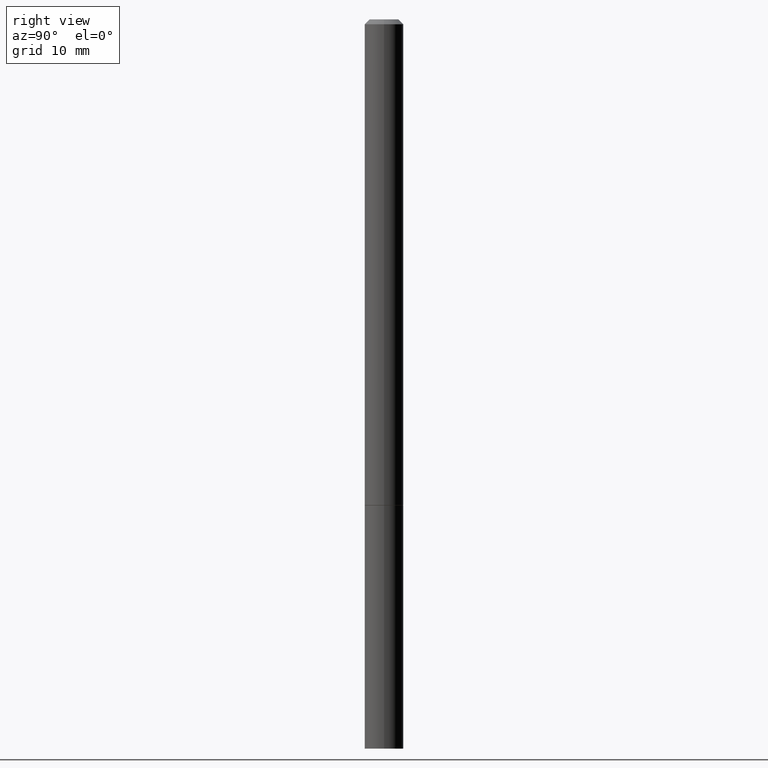
[diagram: clean part render]
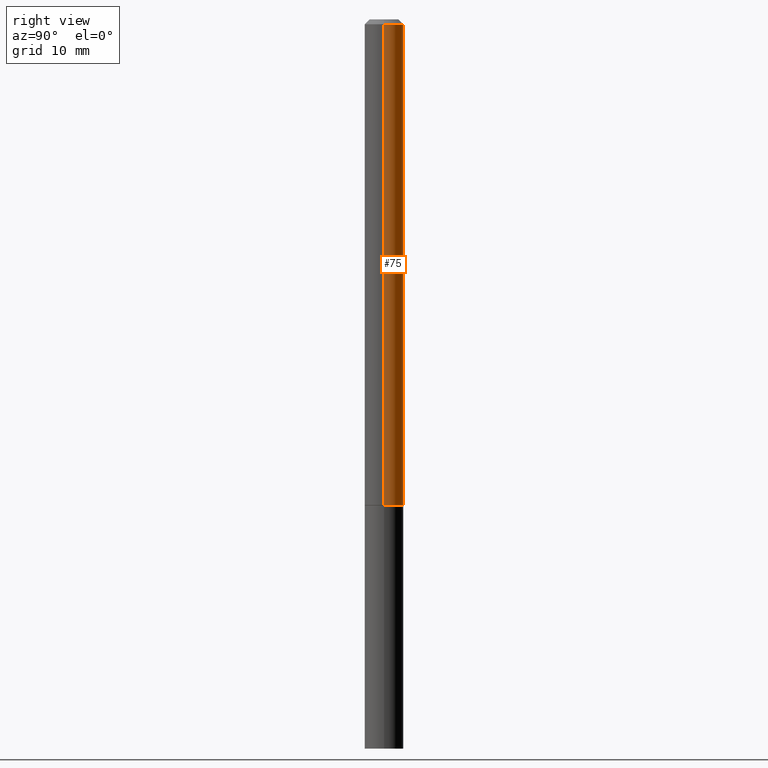
[diagram: same view with one face highlighted and labeled with its STEP entity id]
A machine part, right view. The second image highlights one B-rep face of the part: STEP entity #75.
In plain terms, the highlighted cylindrical surface (edge-blend (fillet) strip) has radius 2.0002 mm, axis along (-0, 0, 1).
Its self-contained STEP definition (entity closure, byte-faithful):
#6 = ORIENTED_EDGE ( 'NONE', *, *, #177, .F. ) ;
#20 = CARTESIAN_POINT ( 'NONE',  ( -0.07874999999999987566, 5.595524044110780128E-16, -3.873661383575732186E-30 ) ) ;
#54 = AXIS2_PLACEMENT_3D ( 'NONE', #205, #325, #212 ) ;
#75 = ADVANCED_FACE ( 'NONE', ( #243 ), #210, .T. ) ;
#89 = VECTOR ( 'NONE', #143, 39.37007874015748143 ) ;
#99 = CARTESIAN_POINT ( 'NONE',  ( 4.890937612370276662E-31, -6.982962677686296539E-17, -0.02000000000000001776 ) ) ;
#108 = VERTEX_POINT ( 'NONE', #270 ) ;
#116 = VERTEX_POINT ( 'NONE', #156 ) ;
#120 = LINE ( 'NONE', #234, #89 ) ;
#121 = ORIENTED_EDGE ( 'NONE', *, *, #342, .T. ) ;
#134 = EDGE_CURVE ( 'NONE', #108, #321, #159, .T. ) ;
#143 = DIRECTION ( 'NONE',  ( -2.445468806185136877E-29, 3.491481338843145188E-15, 1.000000000000000000 ) ) ;
#152 = DIRECTION ( 'NONE',  ( -2.445468806185136597E-29, 3.491481338843145583E-15, 1.000000000000000000 ) ) ;
#156 = CARTESIAN_POINT ( 'NONE',  ( 0.07874999999999973688, -6.100938441013694129E-16, -0.02000000000000001776 ) ) ;
#159 = LINE ( 'NONE', #20, #333 ) ;
#174 = DIRECTION ( 'NONE',  ( 1.000000000000000000, -6.982962677686261977E-15, 0.000000000000000000 ) ) ;
#177 = EDGE_CURVE ( 'NONE', #116, #321, #219, .T. ) ;
#199 = ORIENTED_EDGE ( 'NONE', *, *, #339, .F. ) ;
#205 = CARTESIAN_POINT ( 'NONE',  ( 0.000000000000000000, 0.000000000000000000, 0.000000000000000000 ) ) ;
#210 = CYLINDRICAL_SURFACE ( 'NONE', #54, 0.07874999999999987566 ) ;
#212 = DIRECTION ( 'NONE',  ( 1.000000000000000000, -6.982962677686266711E-15, 4.876176775795935793E-29 ) ) ;
#219 = CIRCLE ( 'NONE', #355, 0.07874999999999973688 ) ;
#234 = CARTESIAN_POINT ( 'NONE',  ( 0.07874999999999987566, -5.499083108677926554E-16, 3.839989210939293411E-30 ) ) ;
#235 = ORIENTED_EDGE ( 'NONE', *, *, #134, .T. ) ;
#243 = FACE_OUTER_BOUND ( 'NONE', #310, .T. ) ;
#270 = CARTESIAN_POINT ( 'NONE',  ( -0.07875000000000000056, -2.910107176064290492E-15, -1.967499999999999805 ) ) ;
#279 = CIRCLE ( 'NONE', #299, 0.07875000000000000056 ) ;
#288 = CARTESIAN_POINT ( 'NONE',  ( 0.07875000000000000056, -7.419397845041680468E-15, -1.967499999999999805 ) ) ;
#299 = AXIS2_PLACEMENT_3D ( 'NONE', #344, #319, #174 ) ;
#310 = EDGE_LOOP ( 'NONE', ( #121, #235, #6, #199 ) ) ;
#316 = VERTEX_POINT ( 'NONE', #288 ) ;
#319 = DIRECTION ( 'NONE',  ( -2.445468806185136597E-29, 3.491481338843145583E-15, 1.000000000000000000 ) ) ;
#321 = VERTEX_POINT ( 'NONE', #352 ) ;
#325 = DIRECTION ( 'NONE',  ( -2.445468806185136597E-29, 3.491481338843145583E-15, 1.000000000000000000 ) ) ;
#327 = DIRECTION ( 'NONE',  ( 1.000000000000000000, -6.982962677686266711E-15, 0.000000000000000000 ) ) ;
#333 = VECTOR ( 'NONE', #361, 39.37007874015748143 ) ;
#339 = EDGE_CURVE ( 'NONE', #316, #116, #120, .T. ) ;
#342 = EDGE_CURVE ( 'NONE', #316, #108, #279, .T. ) ;
#344 = CARTESIAN_POINT ( 'NONE',  ( 4.811459876169255671E-29, -6.869489534173887122E-15, -1.967499999999999805 ) ) ;
#352 = CARTESIAN_POINT ( 'NONE',  ( -0.07874999999999973688, 4.800786840909286670E-16, -0.02000000000000001776 ) ) ;
#355 = AXIS2_PLACEMENT_3D ( 'NONE', #99, #152, #327 ) ;
#361 = DIRECTION ( 'NONE',  ( -2.445468806185136877E-29, 3.491481338843145188E-15, 1.000000000000000000 ) ) ;